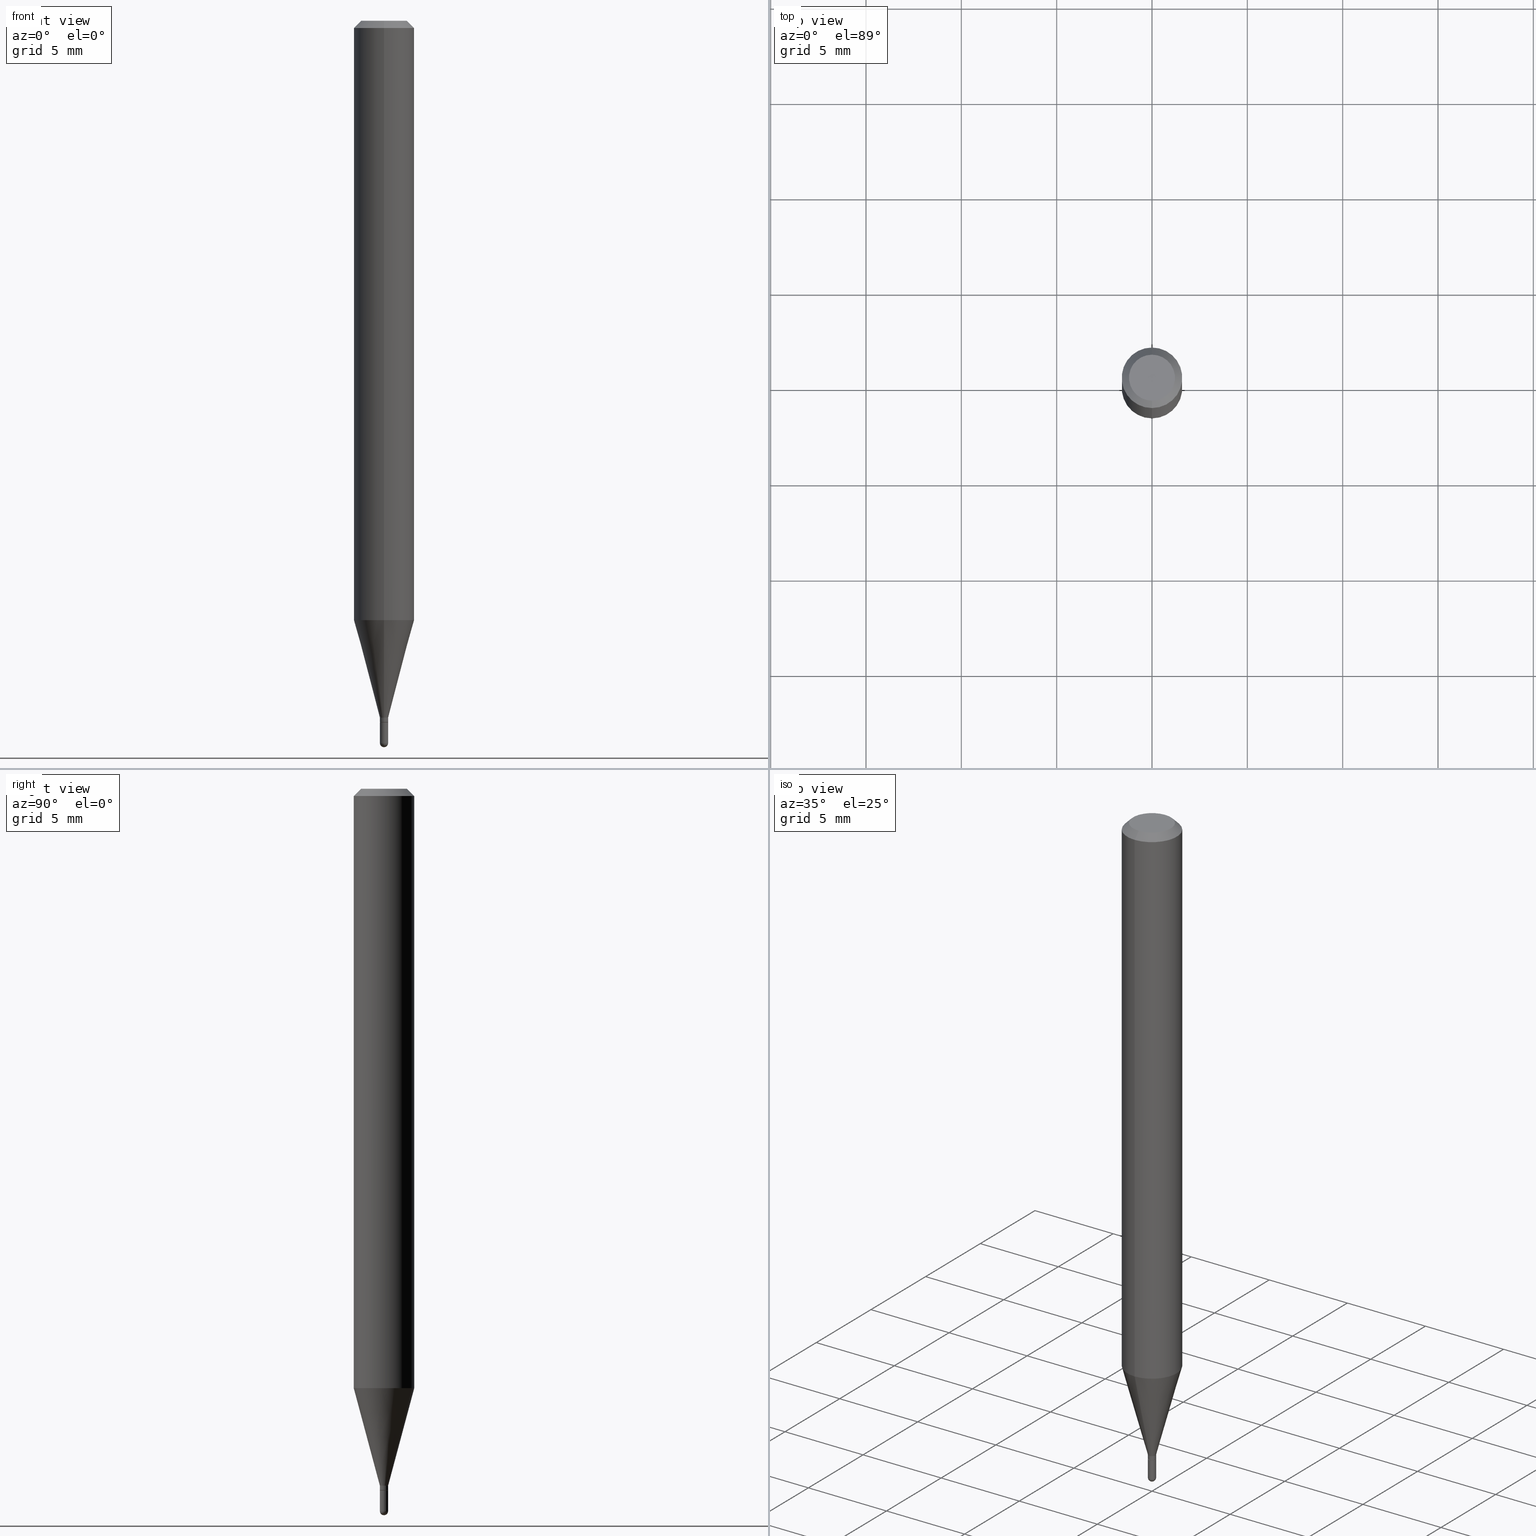
[diagram: canonical four-view strip — front | top / right | iso, engineering-drawing reading convention]
A machine part, canonical four-view strip (front | top / right | iso — engineering-drawing reading convention). The complete STEP part file that produces these views, byte-faithful:
ISO-10303-21;
HEADER;
FILE_DESCRIPTION (( 'STEP AP203' ),
    '1' );
FILE_NAME ('00894.STEP',
    '2024-03-07T18:43:12',
    ( '' ),
    ( '' ),
    'SwSTEP 2.0',
    'SolidWorks 2023',
    '' );
FILE_SCHEMA (( 'CONFIG_CONTROL_DESIGN' ));
ENDSEC;

DATA;
#1 = DATE_AND_TIME ( #276, #384 ) ;
#2 = ORIENTED_EDGE ( 'NONE', *, *, #46, .F. ) ;
#3 = APPLICATION_PROTOCOL_DEFINITION ( 'international standard', 'config_control_design', 1994, #210 ) ;
#4 = DIRECTION ( 'NONE',  ( 2.445453638113980177E-29, -3.491503060384354605E-15, -1.000000000000000000 ) ) ;
#5 = ORIENTED_EDGE ( 'NONE', *, *, #200, .T. ) ;
#6 = VERTEX_POINT ( 'NONE', #450 ) ;
#7 = COORDINATED_UNIVERSAL_TIME_OFFSET ( 5, 0, .BEHIND. ) ;
#8 = DIRECTION ( 'NONE',  ( -4.851104656540964275E-15, -0.7071067811865500152, -0.7071067811865450192 ) ) ;
#9 = DIRECTION ( 'NONE',  ( -4.937700262164674260E-15, -0.7071067811865632269, 0.7071067811865319186 ) ) ;
#10 = CC_DESIGN_PERSON_AND_ORGANIZATION_ASSIGNMENT ( #436, #83, ( #163 ) ) ;
#11 = DIRECTION ( 'NONE',  ( -2.445453638113979897E-29, 3.491503060384354605E-15, 1.000000000000000000 ) ) ;
#12 = DIRECTION ( 'NONE',  ( -2.445453638113980177E-29, 3.491503060384354605E-15, 1.000000000000000000 ) ) ;
#13 = AXIS2_PLACEMENT_3D ( 'NONE', #425, #67, #225 ) ;
#14 = AXIS2_PLACEMENT_3D ( 'NONE', #191, #432, #460 ) ;
#15 = AXIS2_PLACEMENT_3D ( 'NONE', #279, #468, #318 ) ;
#16 = VECTOR ( 'NONE', #303, 39.37007874015748143 ) ;
#17 = LINE ( 'NONE', #493, #503 ) ;
#18 = PLANE ( 'NONE',  #79 ) ;
#19 = DIRECTION ( 'NONE',  ( 6.982962677686265922E-15, 1.000000000000000000, 0.000000000000000000 ) ) ;
#20 = DIRECTION ( 'NONE',  ( -2.445468806185136597E-29, 3.491481338843145583E-15, 1.000000000000000000 ) ) ;
#21 = ORIENTED_EDGE ( 'NONE', *, *, #125, .T. ) ;
#22 = LINE ( 'NONE', #348, #328 ) ;
#23 = LINE ( 'NONE', #506, #418 ) ;
#24 = CONICAL_SURFACE ( 'NONE', #136, 0.008499999999999924283, 0.2617993877991505181 ) ;
#25 = LOCAL_TIME ( 13, 43, 12.00000000000000000, #36 ) ;
#26 =( CONVERSION_BASED_UNIT ( 'INCH', #157 ) LENGTH_UNIT ( ) NAMED_UNIT ( #231 ) );
#27 = CARTESIAN_POINT ( 'NONE',  ( 3.026173695096260823E-29, -4.320627695821710436E-15, -1.237469256391281247 ) ) ;
#28 = EDGE_CURVE ( 'NONE', #400, #353, #458, .T. ) ;
#29 = DIRECTION ( 'NONE',  ( -2.445468806185136877E-29, 3.491481338843145188E-15, 1.000000000000000000 ) ) ;
#30 = CARTESIAN_POINT ( 'NONE',  ( 5.935518276036960296E-17, 0.008499999999994775624, -1.491500000000000270 ) ) ;
#31 = PLANE ( 'NONE',  #249 ) ;
#32 = VERTEX_POINT ( 'NONE', #444 ) ;
#33 = CARTESIAN_POINT ( 'NONE',  ( 5.861977570024342171E-17, 0.007999999999994941713, -1.449000000000000066 ) ) ;
#34 = CARTESIAN_POINT ( 'NONE',  ( 4.440892098500927901E-16, 0.06249999999999569095, -1.237469256391281691 ) ) ;
#35 = AXIS2_PLACEMENT_3D ( 'NONE', #440, #309, #40 ) ;
#36 = COORDINATED_UNIVERSAL_TIME_OFFSET ( 5, 0, .BEHIND. ) ;
#37 = PERSON_AND_ORGANIZATION ( #134, #228 ) ;
#38 = EDGE_CURVE ( 'NONE', #193, #32, #100, .T. ) ;
#39 = CARTESIAN_POINT ( 'NONE',  ( 3.668180457170972613E-31, -5.237254590576535705E-17, -0.01500000000000000812 ) ) ;
#40 = DIRECTION ( 'NONE',  ( 6.982962677686265922E-15, 1.000000000000000000, -3.483106191921935554E-15 ) ) ;
#41 = DATE_TIME_ROLE ( 'creation_date' ) ;
#42 = CARTESIAN_POINT ( 'NONE',  ( -5.586370142145469855E-17, -0.008000000000005060355, -1.449000000000000066 ) ) ;
#43 = DIRECTION ( 'NONE',  ( -2.445453638113980177E-29, 3.491503060384354605E-15, 1.000000000000000000 ) ) ;
#44 = AXIS2_PLACEMENT_3D ( 'NONE', #474, #166, #119 ) ;
#45 = AXIS2_PLACEMENT_3D ( 'NONE', #330, #282, #248 ) ;
#46 = EDGE_CURVE ( 'NONE', #6, #307, #259, .T. ) ;
#47 = CC_DESIGN_DATE_AND_TIME_ASSIGNMENT ( #118, #399, ( #213 ) ) ;
#48 = CALENDAR_DATE ( 2024, 7, 3 ) ;
#49 = EDGE_LOOP ( 'NONE', ( #287, #312 ) ) ;
#50 = FACE_OUTER_BOUND ( 'NONE', #448, .T. ) ;
#51 = AXIS2_PLACEMENT_3D ( 'NONE', #65, #220, #254 ) ;
#52 = CIRCLE ( 'NONE', #206, 0.008499999999999964181 ) ;
#53 = LOCAL_TIME ( 13, 43, 12.00000000000000000, #7 ) ;
#54 = CARTESIAN_POINT ( 'NONE',  ( 3.316907271900976096E-16, 0.04749999999999999362, -1.702760392775686782E-16 ) ) ;
#55 = EDGE_LOOP ( 'NONE', ( #326, #81, #82, #500 ) ) ;
#56 = LINE ( 'NONE', #383, #155 ) ;
#57 = FACE_OUTER_BOUND ( 'NONE', #158, .T. ) ;
#58 = CARTESIAN_POINT ( 'NONE',  ( 0.008500000000000002345, -5.192705621194468652E-15, -1.491500000000000270 ) ) ;
#59 = FACE_OUTER_BOUND ( 'NONE', #140, .T. ) ;
#60 = FACE_OUTER_BOUND ( 'NONE', #364, .T. ) ;
#61 = EDGE_LOOP ( 'NONE', ( #281, #351 ) ) ;
#62 = CIRCLE ( 'NONE', #13, 0.008500000000000002345 ) ;
#63 = VECTOR ( 'NONE', #195, 39.37007874015748854 ) ;
#64 = DIRECTION ( 'NONE',  ( -1.000000000000000000, 6.982962677686265922E-15, -4.876176775795935793E-29 ) ) ;
#65 = CARTESIAN_POINT ( 'NONE',  ( 3.543462321627157174E-29, -5.059187934496930436E-15, -1.449000000000000066 ) ) ;
#66 = FACE_OUTER_BOUND ( 'NONE', #199, .T. ) ;
#67 = DIRECTION ( 'NONE',  ( -2.445468806185136597E-29, 3.491481338843145583E-15, 1.000000000000000000 ) ) ;
#68 = DIRECTION ( 'NONE',  ( -2.445453638113980457E-29, 3.491503060384354605E-15, 1.000000000000000000 ) ) ;
#69 = ADVANCED_FACE ( 'NONE', ( #346 ), #268, .T. ) ;
#70 = DIRECTION ( 'NONE',  ( 4.937700262164548042E-15, 0.7071067811865451302, -0.7071067811865499042 ) ) ;
#71 = AXIS2_PLACEMENT_3D ( 'NONE', #406, #223, #344 ) ;
#72 = APPROVAL_PERSON_ORGANIZATION ( #372, #117, #280 ) ;
#73 = CARTESIAN_POINT ( 'NONE',  ( -6.039613253957192439E-17, -0.008500000000005190903, -1.491500000000000270 ) ) ;
#74 = ORIENTED_EDGE ( 'NONE', *, *, #240, .T. ) ;
#75 = EDGE_LOOP ( 'NONE', ( #154, #78, #401, #322 ) ) ;
#76 = ADVANCED_FACE ( 'NONE', ( #306 ), #387, .T. ) ;
#77 = DIRECTION ( 'NONE',  ( -6.982962677686265922E-15, -1.000000000000000000, 4.370956789862821150E-15 ) ) ;
#78 = ORIENTED_EDGE ( 'NONE', *, *, #242, .T. ) ;
#79 = AXIS2_PLACEMENT_3D ( 'NONE', #93, #291, #64 ) ;
#80 = DATE_AND_TIME ( #48, #357 ) ;
#81 = ORIENTED_EDGE ( 'NONE', *, *, #88, .T. ) ;
#82 = ORIENTED_EDGE ( 'NONE', *, *, #87, .T. ) ;
#83 = PERSON_AND_ORGANIZATION_ROLE ( 'creator' ) ;
#84 = EDGE_LOOP ( 'NONE', ( #2, #5, #443, #323 ) ) ;
#85 = ORIENTED_EDGE ( 'NONE', *, *, #476, .T. ) ;
#86 = APPROVAL_ROLE ( '' ) ;
#87 = EDGE_CURVE ( 'NONE', #108, #252, #194, .T. ) ;
#88 = EDGE_CURVE ( 'NONE', #419, #108, #308, .T. ) ;
#89 = DIRECTION ( 'NONE',  ( 0.000000000000000000, 0.000000000000000000, 1.000000000000000000 ) ) ;
#90 = CIRCLE ( 'NONE', #44, 0.06250000000000000000 ) ;
#91 = CC_DESIGN_APPROVAL ( #117, ( #417 ) ) ;
#92 = EDGE_CURVE ( 'NONE', #353, #400, #90, .T. ) ;
#93 = CARTESIAN_POINT ( 'NONE',  ( 5.935518276036870316E-17, 0.008499999999994942157, -1.449000000000000066 ) ) ;
#94 = AXIS2_PLACEMENT_3D ( 'NONE', #250, #488, #412 ) ;
#95 = PRODUCT_RELATED_PRODUCT_CATEGORY ( 'detail', '', ( #217 ) ) ;
#96 = CC_DESIGN_APPROVAL ( #232, ( #163 ) ) ;
#97 = CARTESIAN_POINT ( 'NONE',  ( -0.008500000000000000611, -5.072954305894525412E-15, -1.449000000000000066 ) ) ;
#98 = DIRECTION ( 'NONE',  ( 1.839019923739601893E-15, 0.2588190451025252359, 0.9659258262890670910 ) ) ;
#99 = DIRECTION ( 'NONE',  ( -6.982962677686265922E-15, -1.000000000000000000, 3.483106191921935554E-15 ) ) ;
#100 = LINE ( 'NONE', #255, #266 ) ;
#101 = DIRECTION ( 'NONE',  ( -6.982962677686265922E-15, -1.000000000000000000, 3.491503060384354605E-15 ) ) ;
#102 = ADVANCED_FACE ( 'NONE', ( #110 ), #31, .F. ) ;
#103 = DIRECTION ( 'NONE',  ( -2.445468806185136597E-29, 3.491481338843145583E-15, 1.000000000000000000 ) ) ;
#104 = ORIENTED_EDGE ( 'NONE', *, *, #92, .T. ) ;
#105 = CARTESIAN_POINT ( 'NONE',  ( 3.519007785246017748E-29, -5.024272903893087103E-15, -1.439000000000000057 ) ) ;
#106 = ADVANCED_FACE ( 'NONE', ( #59 ), #172, .T. ) ;
#107 = CARTESIAN_POINT ( 'NONE',  ( -4.364351673553912750E-16, -0.06250000000000005551, -0.01499999999999979128 ) ) ;
#108 = VERTEX_POINT ( 'NONE', #42 ) ;
#109 = ADVANCED_FACE ( 'NONE', ( #60 ), #454, .T. ) ;
#110 = FACE_OUTER_BOUND ( 'NONE', #214, .T. ) ;
#111 = DIRECTION ( 'NONE',  ( -2.445453638113980177E-29, 3.491503060384354605E-15, 1.000000000000000000 ) ) ;
#112 = AXIS2_PLACEMENT_3D ( 'NONE', #456, #494, #215 ) ;
#113 = VECTOR ( 'NONE', #68, 39.37007874015748143 ) ;
#114 = FACE_OUTER_BOUND ( 'NONE', #362, .T. ) ;
#115 = ADVANCED_FACE ( 'NONE', ( #221 ), #24, .T. ) ;
#116 = ORIENTED_EDGE ( 'NONE', *, *, #208, .T. ) ;
#117 = APPROVAL ( #127, 'UNSPECIFIED' ) ;
#118 = DATE_AND_TIME ( #365, #388 ) ;
#119 = DIRECTION ( 'NONE',  ( -6.982962677686265922E-15, -1.000000000000000000, 3.483106191921935554E-15 ) ) ;
#120 = ORIENTED_EDGE ( 'NONE', *, *, #316, .T. ) ;
#121 = VERTEX_POINT ( 'NONE', #286 ) ;
#122 = AXIS2_PLACEMENT_3D ( 'NONE', #461, #299, #19 ) ;
#123 = APPROVAL_DATE_TIME ( #80, #117 ) ;
#124 = VERTEX_POINT ( 'NONE', #97 ) ;
#125 = EDGE_CURVE ( 'NONE', #285, #459, #227, .T. ) ;
#126 = ADVANCED_FACE ( 'NONE', ( #165 ), #205, .T. ) ;
#127 = APPROVAL_STATUS ( 'not_yet_approved' ) ;
#128 = AXIS2_PLACEMENT_3D ( 'NONE', #39, #4, #463 ) ;
#129 = ORIENTED_EDGE ( 'NONE', *, *, #138, .T. ) ;
#130 = ADVANCED_BREP_SHAPE_REPRESENTATION ( '00894', ( #475, #486, #367 ), #311 ) ;
#131 = EDGE_CURVE ( 'NONE', #341, #393, #478, .T. ) ;
#132 = PLANE ( 'NONE',  #339 ) ;
#133 = CC_DESIGN_DATE_AND_TIME_ASSIGNMENT ( #1, #41, ( #417 ) ) ;
#134 = PERSON ( 'UNSPECIFIED', 'UNSPECIFIED', 'UNSPECIFIED', ('UNSPECIFIED'), ('UNSPECIFIED'), ('UNSPECIFIED') ) ;
#135 = CARTESIAN_POINT ( 'NONE',  ( 3.542239594808100175E-29, -5.057442182966738625E-15, -1.448500000000000121 ) ) ;
#136 = AXIS2_PLACEMENT_3D ( 'NONE', #324, #466, #247 ) ;
#137 = AXIS2_PLACEMENT_3D ( 'NONE', #392, #389, #305 ) ;
#138 = EDGE_CURVE ( 'NONE', #307, #6, #511, .T. ) ;
#139 = CC_DESIGN_PERSON_AND_ORGANIZATION_ASSIGNMENT ( #164, #402, ( #213 ) ) ;
#140 = EDGE_LOOP ( 'NONE', ( #189, #378, #396, #481 ) ) ;
#141 = VERTEX_POINT ( 'NONE', #449 ) ;
#142 = ORIENTED_EDGE ( 'NONE', *, *, #316, .F. ) ;
#143 = CARTESIAN_POINT ( 'NONE',  ( 0.000000000000000000, 0.000000000000000000, 0.000000000000000000 ) ) ;
#144 = ORIENTED_EDGE ( 'NONE', *, *, #131, .F. ) ;
#145 = CONICAL_SURFACE ( 'NONE', #479, 0.008499999999999924283, 0.2617993877991505181 ) ;
#146 = APPLICATION_CONTEXT ( 'configuration controlled 3d designs of mechanical parts and assemblies' ) ;
#147 = ORIENTED_EDGE ( 'NONE', *, *, #376, .F. ) ;
#148 = CARTESIAN_POINT ( 'NONE',  ( 0.008500000000000002345, -5.935518276033327838E-17, 4.144750259426545879E-31 ) ) ;
#149 = CARTESIAN_POINT ( 'NONE',  ( 3.646689833079329078E-29, -5.208585366663827303E-15, -1.491500000000000270 ) ) ;
#150 = ORIENTED_EDGE ( 'NONE', *, *, #391, .F. ) ;
#151 = CARTESIAN_POINT ( 'NONE',  ( -4.364351673553615448E-16, -0.06250000000000432987, -1.237469256391281025 ) ) ;
#152 = ADVANCED_FACE ( 'NONE', ( #253 ), #334, .T. ) ;
#153 = CARTESIAN_POINT ( 'NONE',  ( 3.519007785246017748E-29, -5.024272903893087103E-15, -1.439000000000000057 ) ) ;
#154 = ORIENTED_EDGE ( 'NONE', *, *, #407, .T. ) ;
#155 = VECTOR ( 'NONE', #8, 39.37007874015748143 ) ;
#156 = APPROVAL_PERSON_ORGANIZATION ( #239, #232, #209 ) ;
#157 = LENGTH_MEASURE_WITH_UNIT ( LENGTH_MEASURE( 0.02539999999999999897 ), #263 );
#158 = EDGE_LOOP ( 'NONE', ( #315, #314, #340, #150 ) ) ;
#159 = DATE_AND_TIME ( #235, #25 ) ;
#160 = COORDINATED_UNIVERSAL_TIME_OFFSET ( 5, 0, .BEHIND. ) ;
#161 = CLOSED_SHELL ( 'NONE', ( #152, #69, #354, #368, #109 ) ) ;
#162 = EDGE_CURVE ( 'NONE', #252, #193, #176, .T. ) ;
#163 = PRODUCT_DEFINITION_FORMATION_WITH_SPECIFIED_SOURCE ( 'ANY', '', #217, .NOT_KNOWN. ) ;
#164 = PERSON_AND_ORGANIZATION ( #134, #228 ) ;
#165 = FACE_OUTER_BOUND ( 'NONE', #84, .T. ) ;
#166 = DIRECTION ( 'NONE',  ( -2.445453638113980177E-29, 3.491503060384354605E-15, 1.000000000000000000 ) ) ;
#167 = CARTESIAN_POINT ( 'NONE',  ( 0.000000000000000000, 0.000000000000000000, 0.000000000000000000 ) ) ;
#168 = ADVANCED_FACE ( 'NONE', ( #50 ), #333, .T. ) ;
#169 = AXIS2_PLACEMENT_3D ( 'NONE', #395, #236, #462 ) ;
#170 = CC_DESIGN_SECURITY_CLASSIFICATION ( #213, ( #163 ) ) ;
#171 = PRODUCT_DEFINITION_SHAPE ( 'NONE', 'NONE',  #417 ) ;
#172 = CYLINDRICAL_SURFACE ( 'NONE', #374, 0.008499999999999924283 ) ;
#173 = DIRECTION ( 'NONE',  ( -2.445468806185136597E-29, 3.491481338843145583E-15, 1.000000000000000000 ) ) ;
#174 = DIRECTION ( 'NONE',  ( -2.445468806185136597E-29, 3.491481338843145583E-15, 1.000000000000000000 ) ) ;
#175 = EDGE_CURVE ( 'NONE', #124, #141, #435, .T. ) ;
#176 = CIRCLE ( 'NONE', #427, 0.008499999999999924283 ) ;
#177 = AXIS2_PLACEMENT_3D ( 'NONE', #143, #190, #352 ) ;
#178 = CYLINDRICAL_SURFACE ( 'NONE', #45, 0.06250000000000000000 ) ;
#179 = VERTEX_POINT ( 'NONE', #151 ) ;
#180 = DIRECTION ( 'NONE',  ( -7.105427357601000281E-15, -1.000000000000000000, 0.000000000000000000 ) ) ;
#181 = ORIENTED_EDGE ( 'NONE', *, *, #200, .F. ) ;
#182 = CARTESIAN_POINT ( 'NONE',  ( 3.519007785246017748E-29, -5.024272903893087103E-15, -1.439000000000000057 ) ) ;
#183 = EDGE_CURVE ( 'NONE', #141, #124, #288, .T. ) ;
#184 = DIRECTION ( 'NONE',  ( 6.982962677686265922E-15, 1.000000000000000000, 0.000000000000000000 ) ) ;
#185 = CIRCLE ( 'NONE', #245, 0.008499999999999924283 ) ;
#186 = APPROVAL ( #370, 'UNSPECIFIED' ) ;
#187 = CARTESIAN_POINT ( 'NONE',  ( 3.542239594808100175E-29, -5.057442182966738625E-15, -1.448500000000000121 ) ) ;
#188 = DIRECTION ( 'NONE',  ( -6.982962677686266711E-15, -1.000000000000000000, 3.491503060384354605E-15 ) ) ;
#189 = ORIENTED_EDGE ( 'NONE', *, *, #162, .T. ) ;
#190 = DIRECTION ( 'NONE',  ( -2.445453638113980177E-29, 3.491503060384354605E-15, 1.000000000000000000 ) ) ;
#191 = CARTESIAN_POINT ( 'NONE',  ( 3.647416724425131194E-29, -5.207544416884551827E-15, -1.491500000000000270 ) ) ;
#192 = CARTESIAN_POINT ( 'NONE',  ( -0.008500000000000002345, 6.039613253960853246E-17, -4.181094826716670944E-31 ) ) ;
#193 = VERTEX_POINT ( 'NONE', #415 ) ;
#194 = LINE ( 'NONE', #485, #366 ) ;
#195 = DIRECTION ( 'NONE',  ( -1.807323732225331717E-15, -0.2588190451025184080, 0.9659258262890689783 ) ) ;
#196 = AXIS2_PLACEMENT_3D ( 'NONE', #27, #111, #293 ) ;
#197 = APPROVAL_DATE_TIME ( #159, #232 ) ;
#198 = CALENDAR_DATE ( 2024, 7, 3 ) ;
#199 = EDGE_LOOP ( 'NONE', ( #439, #85, #416, #142 ) ) ;
#200 = EDGE_CURVE ( 'NONE', #6, #400, #56, .T. ) ;
#201 = ADVANCED_FACE ( 'NONE', ( #277 ), #355, .T. ) ;
#202 = PERSON_AND_ORGANIZATION ( #134, #228 ) ;
#203 = DIRECTION ( 'NONE',  ( -6.982962677686266711E-15, -1.000000000000000000, 3.491503060384355000E-15 ) ) ;
#204 = ORIENTED_EDGE ( 'NONE', *, *, #87, .F. ) ;
#205 = CONICAL_SURFACE ( 'NONE', #35, 0.06250000000000000000, 0.7853981633974483900 ) ;
#206 = AXIS2_PLACEMENT_3D ( 'NONE', #149, #467, #184 ) ;
#207 = APPROVAL_STATUS ( 'not_yet_approved' ) ;
#208 = EDGE_CURVE ( 'NONE', #393, #285, #62, .T. ) ;
#209 = APPROVAL_ROLE ( '' ) ;
#210 = APPLICATION_CONTEXT ( 'configuration controlled 3d designs of mechanical parts and assemblies' ) ;
#211 = EDGE_CURVE ( 'NONE', #307, #353, #23, .T. ) ;
#212 = CIRCLE ( 'NONE', #196, 0.06250000000000000000 ) ;
#213 = SECURITY_CLASSIFICATION ( '', '', #246 ) ;
#214 = EDGE_LOOP ( 'NONE', ( #129, #301 ) ) ;
#215 = DIRECTION ( 'NONE',  ( -6.982962677686266711E-15, -1.000000000000000000, 3.491503060384354605E-15 ) ) ;
#216 = FACE_OUTER_BOUND ( 'NONE', #61, .T. ) ;
#217 = PRODUCT ( '00894', '00894', '', ( #484 ) ) ;
#218 = ORIENTED_EDGE ( 'NONE', *, *, #38, .F. ) ;
#219 = AXIS2_PLACEMENT_3D ( 'NONE', #262, #359, #188 ) ;
#220 = DIRECTION ( 'NONE',  ( -2.445453638113980177E-29, 3.491503060384354605E-15, 1.000000000000000000 ) ) ;
#221 = FACE_OUTER_BOUND ( 'NONE', #75, .T. ) ;
#222 = EDGE_CURVE ( 'NONE', #179, #297, #212, .T. ) ;
#223 = DIRECTION ( 'NONE',  ( -2.445468806185136597E-29, 3.491481338843145583E-15, 1.000000000000000000 ) ) ;
#224 = DIRECTION ( 'NONE',  ( -6.982962677686266711E-15, -1.000000000000000000, 0.000000000000000000 ) ) ;
#225 = DIRECTION ( 'NONE',  ( 1.000000000000000000, -6.982962677686273021E-15, 0.000000000000000000 ) ) ;
#226 = CARTESIAN_POINT ( 'NONE',  ( 4.440892098500625669E-16, 0.06250000000000000000, -2.182189412740221628E-16 ) ) ;
#227 = CIRCLE ( 'NONE', #71, 0.008500000000000002345 ) ;
#228 = ORGANIZATION ( 'UNSPECIFIED', 'UNSPECIFIED', '' ) ;
#229 = LINE ( 'NONE', #148, #375 ) ;
#230 = DIRECTION ( 'NONE',  ( -2.445453638113980457E-29, 3.491503060384354605E-15, 1.000000000000000000 ) ) ;
#231 = DIMENSIONAL_EXPONENTS ( 1.000000000000000000, 0.000000000000000000, 0.000000000000000000, 0.000000000000000000, 0.000000000000000000, 0.000000000000000000, 0.000000000000000000 ) ;
#232 = APPROVAL ( #207, 'UNSPECIFIED' ) ;
#233 = CARTESIAN_POINT ( 'NONE',  ( -4.364351673553916201E-16, -0.06250000000000000000, 2.182189412740221628E-16 ) ) ;
#234 = CARTESIAN_POINT ( 'NONE',  ( 3.543462321627157174E-29, -5.059187934496930436E-15, -1.449000000000000066 ) ) ;
#235 = CALENDAR_DATE ( 2024, 7, 3 ) ;
#236 = DIRECTION ( 'NONE',  ( -1.000000000000000000, 6.982962677686265922E-15, -4.883557194083112340E-29 ) ) ;
#237 = AXIS2_PLACEMENT_3D ( 'NONE', #496, #20, #452 ) ;
#238 = DIRECTION ( 'NONE',  ( -2.445453638113980177E-29, 3.491503060384354605E-15, 1.000000000000000000 ) ) ;
#239 = PERSON_AND_ORGANIZATION ( #134, #228 ) ;
#240 = EDGE_CURVE ( 'NONE', #193, #252, #327, .T. ) ;
#241 = PERSON_AND_ORGANIZATION_ROLE ( 'design_supplier' ) ;
#242 = EDGE_CURVE ( 'NONE', #32, #297, #17, .T. ) ;
#243 = ORIENTED_EDGE ( 'NONE', *, *, #451, .T. ) ;
#244 = AXIS2_PLACEMENT_3D ( 'NONE', #377, #173, #336 ) ;
#245 = AXIS2_PLACEMENT_3D ( 'NONE', #105, #509, #224 ) ;
#246 = SECURITY_CLASSIFICATION_LEVEL ( 'unclassified' ) ;
#247 = DIRECTION ( 'NONE',  ( -6.982962677686266711E-15, -1.000000000000000000, 0.000000000000000000 ) ) ;
#248 = DIRECTION ( 'NONE',  ( -6.982962677686265922E-15, -1.000000000000000000, 3.491503060384354605E-15 ) ) ;
#249 = AXIS2_PLACEMENT_3D ( 'NONE', #54, #335, #290 ) ;
#250 = CARTESIAN_POINT ( 'NONE',  ( 0.000000000000000000, 0.000000000000000000, 0.000000000000000000 ) ) ;
#251 = CARTESIAN_POINT ( 'NONE',  ( 0.000000000000000000, 0.000000000000000000, 0.000000000000000000 ) ) ;
#252 = VERTEX_POINT ( 'NONE', #257 ) ;
#253 = FACE_OUTER_BOUND ( 'NONE', #437, .T. ) ;
#254 = DIRECTION ( 'NONE',  ( -6.982962677686266711E-15, -1.000000000000000000, 0.000000000000000000 ) ) ;
#255 = CARTESIAN_POINT ( 'NONE',  ( 6.039613253960797780E-17, 0.008499999999999924283, -2.967777601326675175E-17 ) ) ;
#256 = EDGE_CURVE ( 'NONE', #108, #419, #501, .T. ) ;
#257 = CARTESIAN_POINT ( 'NONE',  ( -5.935518276029752079E-17, -0.008500000000005010492, -1.448500000000000121 ) ) ;
#258 = DIRECTION ( 'NONE',  ( 1.000000000000000000, -6.982962677686265922E-15, 4.876176775795935232E-29 ) ) ;
#259 = CIRCLE ( 'NONE', #219, 0.04749999999999999362 ) ;
#260 = ORIENTED_EDGE ( 'NONE', *, *, #391, .T. ) ;
#261 = DIRECTION ( 'NONE',  ( 5.024295867788190974E-15, 0.7071067811865681119, 0.7071067811865270336 ) ) ;
#262 = CARTESIAN_POINT ( 'NONE',  ( 2.166497762715211531E-46, -3.093223053155036777E-32, -8.859287818623667781E-18 ) ) ;
#263 =( LENGTH_UNIT ( ) NAMED_UNIT ( * ) SI_UNIT ( $, .METRE. ) );
#264 = ORIENTED_EDGE ( 'NONE', *, *, #423, .F. ) ;
#265 = CARTESIAN_POINT ( 'NONE',  ( -5.935518276033273604E-17, -0.008499999999999924283, 2.967777601326675175E-17 ) ) ;
#266 = VECTOR ( 'NONE', #349, 39.37007874015748143 ) ;
#267 = ADVANCED_FACE ( 'NONE', ( #57 ), #178, .T. ) ;
#268 = SPHERICAL_SURFACE ( 'NONE', #169, 0.008499999999999964181 ) ;
#269 = EDGE_LOOP ( 'NONE', ( #181, #403, #471, #104 ) ) ;
#270 = ORIENTED_EDGE ( 'NONE', *, *, #162, .F. ) ;
#271 = EDGE_CURVE ( 'NONE', #459, #422, #428, .T. ) ;
#272 = DIRECTION ( 'NONE',  ( 1.000000000000000000, 0.000000000000000000, 0.000000000000000000 ) ) ;
#273 = AXIS2_PLACEMENT_3D ( 'NONE', #342, #12, #371 ) ;
#274 = VECTOR ( 'NONE', #313, 39.37007874015748143 ) ;
#275 = FACE_OUTER_BOUND ( 'NONE', #55, .T. ) ;
#276 = CALENDAR_DATE ( 2024, 7, 3 ) ;
#277 = FACE_OUTER_BOUND ( 'NONE', #269, .T. ) ;
#278 = AXIS2_PLACEMENT_3D ( 'NONE', #379, #174, #258 ) ;
#279 = CARTESIAN_POINT ( 'NONE',  ( 3.543462321627157174E-29, -5.059187934496930436E-15, -1.449000000000000066 ) ) ;
#280 = APPROVAL_ROLE ( '' ) ;
#281 = ORIENTED_EDGE ( 'NONE', *, *, #256, .F. ) ;
#282 = DIRECTION ( 'NONE',  ( -2.445453638113980177E-29, 3.491503060384354605E-15, 1.000000000000000000 ) ) ;
#283 = EDGE_CURVE ( 'NONE', #285, #141, #229, .T. ) ;
#284 = ORIENTED_EDGE ( 'NONE', *, *, #131, .T. ) ;
#285 = VERTEX_POINT ( 'NONE', #58 ) ;
#286 = CARTESIAN_POINT ( 'NONE',  ( -5.935518276029754545E-17, -0.008500000000004949777, -1.439000000000000057 ) ) ;
#287 = ORIENTED_EDGE ( 'NONE', *, *, #183, .T. ) ;
#288 = CIRCLE ( 'NONE', #237, 0.008500000000000000611 ) ;
#289 = DIRECTION ( 'NONE',  ( -2.445453638113980177E-29, 3.491503060384354605E-15, 1.000000000000000000 ) ) ;
#290 = DIRECTION ( 'NONE',  ( 6.982962677686265922E-15, 1.000000000000000000, -3.491503060384354605E-15 ) ) ;
#291 = DIRECTION ( 'NONE',  ( 2.438088387897960049E-29, -3.491481338843145188E-15, -1.000000000000000000 ) ) ;
#292 = CC_DESIGN_PERSON_AND_ORGANIZATION_ASSIGNMENT ( #202, #442, ( #417 ) ) ;
#293 = DIRECTION ( 'NONE',  ( -6.982962677686265922E-15, -1.000000000000000000, 4.370956789862821150E-15 ) ) ;
#294 = ORIENTED_EDGE ( 'NONE', *, *, #271, .F. ) ;
#295 = EDGE_LOOP ( 'NONE', ( #413, #431, #270, #204 ) ) ;
#296 = CC_DESIGN_PERSON_AND_ORGANIZATION_ASSIGNMENT ( #317, #241, ( #163 ) ) ;
#297 = VERTEX_POINT ( 'NONE', #34 ) ;
#298 = AXIS2_PLACEMENT_3D ( 'NONE', #187, #289, #497 ) ;
#299 = DIRECTION ( 'NONE',  ( -1.000000000000000000, 6.982962677686265922E-15, -4.883557194083112340E-29 ) ) ;
#300 = AXIS2_PLACEMENT_3D ( 'NONE', #234, #238, #398 ) ;
#301 = ORIENTED_EDGE ( 'NONE', *, *, #46, .T. ) ;
#302 = FACE_OUTER_BOUND ( 'NONE', #49, .T. ) ;
#303 = DIRECTION ( 'NONE',  ( -2.445453638113980457E-29, 3.491503060384354605E-15, 1.000000000000000000 ) ) ;
#304 = EDGE_CURVE ( 'NONE', #121, #179, #453, .T. ) ;
#305 = DIRECTION ( 'NONE',  ( 1.000000000000000000, -6.982962677686273021E-15, 0.000000000000000000 ) ) ;
#306 = FACE_OUTER_BOUND ( 'NONE', #295, .T. ) ;
#307 = VERTEX_POINT ( 'NONE', #356 ) ;
#308 = CIRCLE ( 'NONE', #15, 0.008000000000000000167 ) ;
#309 = DIRECTION ( 'NONE',  ( 2.445453638113980177E-29, -3.491503060384354605E-15, -1.000000000000000000 ) ) ;
#310 = EDGE_LOOP ( 'NONE', ( #144, #429, #445, #414 ) ) ;
#311 =( GEOMETRIC_REPRESENTATION_CONTEXT ( 3 ) GLOBAL_UNCERTAINTY_ASSIGNED_CONTEXT ( ( #411 ) ) GLOBAL_UNIT_ASSIGNED_CONTEXT ( ( #26, #350, #470 ) ) REPRESENTATION_CONTEXT ( 'NONE', 'WORKASPACE' ) );
#312 = ORIENTED_EDGE ( 'NONE', *, *, #175, .T. ) ;
#313 = DIRECTION ( 'NONE',  ( -2.445468806185136877E-29, 3.491481338843145188E-15, 1.000000000000000000 ) ) ;
#314 = ORIENTED_EDGE ( 'NONE', *, *, #423, .T. ) ;
#315 = ORIENTED_EDGE ( 'NONE', *, *, #222, .T. ) ;
#316 = EDGE_CURVE ( 'NONE', #297, #179, #447, .T. ) ;
#317 = PERSON_AND_ORGANIZATION ( #134, #228 ) ;
#318 = DIRECTION ( 'NONE',  ( -6.982962677686266711E-15, -1.000000000000000000, 0.000000000000000000 ) ) ;
#319 = ORIENTED_EDGE ( 'NONE', *, *, #175, .F. ) ;
#320 = APPLICATION_PROTOCOL_DEFINITION ( 'international standard', 'config_control_design', 1994, #146 ) ;
#321 = DATE_AND_TIME ( #198, #53 ) ;
#322 = ORIENTED_EDGE ( 'NONE', *, *, #304, .F. ) ;
#323 = ORIENTED_EDGE ( 'NONE', *, *, #211, .F. ) ;
#324 = CARTESIAN_POINT ( 'NONE',  ( 3.519007785246017748E-29, -5.024272903893087103E-15, -1.439000000000000057 ) ) ;
#325 = PERSON_AND_ORGANIZATION_ROLE ( 'design_owner' ) ;
#326 = ORIENTED_EDGE ( 'NONE', *, *, #369, .F. ) ;
#327 = CIRCLE ( 'NONE', #298, 0.008499999999999924283 ) ;
#328 = VECTOR ( 'NONE', #261, 39.37007874015748143 ) ;
#329 = ORIENTED_EDGE ( 'NONE', *, *, #283, .T. ) ;
#330 = CARTESIAN_POINT ( 'NONE',  ( 0.000000000000000000, 0.000000000000000000, 0.000000000000000000 ) ) ;
#331 = ADVANCED_FACE ( 'NONE', ( #275 ), #469, .T. ) ;
#332 = DIRECTION ( 'NONE',  ( -2.445453638113980177E-29, 3.491503060384354605E-15, 1.000000000000000000 ) ) ;
#333 = CYLINDRICAL_SURFACE ( 'NONE', #94, 0.06250000000000000000 ) ;
#334 = CYLINDRICAL_SURFACE ( 'NONE', #278, 0.008500000000000002345 ) ;
#335 = DIRECTION ( 'NONE',  ( 2.445453638113979897E-29, -3.491503060384354605E-15, -1.000000000000000000 ) ) ;
#336 = DIRECTION ( 'NONE',  ( 1.000000000000000000, -6.982962677686274599E-15, 0.000000000000000000 ) ) ;
#337 = ORIENTED_EDGE ( 'NONE', *, *, #457, .T. ) ;
#338 = AXIS2_PLACEMENT_3D ( 'NONE', #251, #103, #491 ) ;
#339 = AXIS2_PLACEMENT_3D ( 'NONE', #408, #11, #101 ) ;
#340 = ORIENTED_EDGE ( 'NONE', *, *, #28, .F. ) ;
#341 = VERTEX_POINT ( 'NONE', #421 ) ;
#342 = CARTESIAN_POINT ( 'NONE',  ( 3.543462321627157174E-29, -5.059187934496930436E-15, -1.449000000000000066 ) ) ;
#343 = LINE ( 'NONE', #265, #16 ) ;
#344 = DIRECTION ( 'NONE',  ( 1.000000000000000000, -6.982962677686273021E-15, 0.000000000000000000 ) ) ;
#345 = CYLINDRICAL_SURFACE ( 'NONE', #177, 0.008499999999999924283 ) ;
#346 = FACE_OUTER_BOUND ( 'NONE', #473, .T. ) ;
#347 = AXIS2_PLACEMENT_3D ( 'NONE', #434, #381, #77 ) ;
#348 = CARTESIAN_POINT ( 'NONE',  ( 5.684341886084344084E-17, 0.007999999999994941713, -1.449000000000000066 ) ) ;
#349 = DIRECTION ( 'NONE',  ( -2.445453638113980457E-29, 3.491503060384354605E-15, 1.000000000000000000 ) ) ;
#350 =( NAMED_UNIT ( * ) PLANE_ANGLE_UNIT ( ) SI_UNIT ( $, .RADIAN. ) );
#351 = ORIENTED_EDGE ( 'NONE', *, *, #88, .F. ) ;
#352 = DIRECTION ( 'NONE',  ( -6.982962677686266711E-15, -1.000000000000000000, 3.491503060384355000E-15 ) ) ;
#353 = VERTEX_POINT ( 'NONE', #420 ) ;
#354 = ADVANCED_FACE ( 'NONE', ( #302 ), #18, .F. ) ;
#355 = CONICAL_SURFACE ( 'NONE', #128, 0.06250000000000000000, 0.7853981633974483900 ) ;
#356 = CARTESIAN_POINT ( 'NONE',  ( 3.840629472727447874E-16, 0.04749999999999999362, -1.747056831868805136E-16 ) ) ;
#357 = LOCAL_TIME ( 13, 43, 12.00000000000000000, #477 ) ;
#358 = PERSON_AND_ORGANIZATION ( #134, #228 ) ;
#359 = DIRECTION ( 'NONE',  ( -2.445453638113980177E-29, 3.491503060384354605E-15, 1.000000000000000000 ) ) ;
#360 = ADVANCED_FACE ( 'NONE', ( #216 ), #132, .F. ) ;
#361 = ORIENTED_EDGE ( 'NONE', *, *, #457, .F. ) ;
#362 = EDGE_LOOP ( 'NONE', ( #218, #74, #480, #430 ) ) ;
#363 = APPROVAL_DATE_TIME ( #321, #186 ) ;
#364 = EDGE_LOOP ( 'NONE', ( #390, #337, #116, #329, #319 ) ) ;
#365 = CALENDAR_DATE ( 2024, 7, 3 ) ;
#366 = VECTOR ( 'NONE', #9, 39.37007874015748143 ) ;
#367 = AXIS2_PLACEMENT_3D ( 'NONE', #167, #89, #272 ) ;
#368 = ADVANCED_FACE ( 'NONE', ( #373 ), #386, .T. ) ;
#369 = EDGE_CURVE ( 'NONE', #419, #193, #22, .T. ) ;
#370 = APPROVAL_STATUS ( 'not_yet_approved' ) ;
#371 = DIRECTION ( 'NONE',  ( -6.982962677686266711E-15, -1.000000000000000000, 0.000000000000000000 ) ) ;
#372 = PERSON_AND_ORGANIZATION ( #134, #228 ) ;
#373 = FACE_OUTER_BOUND ( 'NONE', #310, .T. ) ;
#374 = AXIS2_PLACEMENT_3D ( 'NONE', #487, #43, #203 ) ;
#375 = VECTOR ( 'NONE', #29, 39.37007874015748143 ) ;
#376 = EDGE_CURVE ( 'NONE', #341, #459, #52, .T. ) ;
#377 = CARTESIAN_POINT ( 'NONE',  ( 3.543484300162263247E-29, -5.059156459983718502E-15, -1.449000000000000066 ) ) ;
#378 = ORIENTED_EDGE ( 'NONE', *, *, #38, .T. ) ;
#379 = CARTESIAN_POINT ( 'NONE',  ( 0.000000000000000000, 0.000000000000000000, 0.000000000000000000 ) ) ;
#380 = ORIENTED_EDGE ( 'NONE', *, *, #183, .F. ) ;
#381 = DIRECTION ( 'NONE',  ( -2.445453638113980177E-29, 3.491503060384354605E-15, 1.000000000000000000 ) ) ;
#382 = DIRECTION ( 'NONE',  ( -6.982962677686266711E-15, -1.000000000000000000, 0.000000000000000000 ) ) ;
#383 = CARTESIAN_POINT ( 'NONE',  ( -4.287811248607203282E-16, -0.06250000000000005551, -0.01499999999999979128 ) ) ;
#384 = LOCAL_TIME ( 13, 43, 12.00000000000000000, #160 ) ;
#385 = CARTESIAN_POINT ( 'NONE',  ( 3.668180457170972613E-31, -5.237254590576535705E-17, -0.01500000000000000812 ) ) ;
#386 = SPHERICAL_SURFACE ( 'NONE', #122, 0.008499999999999964181 ) ;
#387 = CONICAL_SURFACE ( 'NONE', #273, 0.008000000000000000167, 0.7853981633974739252 ) ;
#388 = LOCAL_TIME ( 13, 43, 12.00000000000000000, #472 ) ;
#389 = DIRECTION ( 'NONE',  ( -2.445468806185136597E-29, 3.491481338843145583E-15, 1.000000000000000000 ) ) ;
#390 = ORIENTED_EDGE ( 'NONE', *, *, #451, .F. ) ;
#391 = EDGE_CURVE ( 'NONE', #179, #400, #426, .T. ) ;
#392 = CARTESIAN_POINT ( 'NONE',  ( 3.647416724425131194E-29, -5.207544416884551827E-15, -1.491500000000000270 ) ) ;
#393 = VERTEX_POINT ( 'NONE', #73 ) ;
#394 = CARTESIAN_POINT ( 'NONE',  ( -0.008500000000000002345, -5.072954305894525412E-15, -1.491500000000000270 ) ) ;
#395 = CARTESIAN_POINT ( 'NONE',  ( 3.646689833079329078E-29, -5.208585366663827303E-15, -1.491500000000000270 ) ) ;
#396 = ORIENTED_EDGE ( 'NONE', *, *, #407, .F. ) ;
#397 = CIRCLE ( 'NONE', #405, 0.008499999999999924283 ) ;
#398 = DIRECTION ( 'NONE',  ( -6.982962677686266711E-15, -1.000000000000000000, 0.000000000000000000 ) ) ;
#399 = DATE_TIME_ROLE ( 'classification_date' ) ;
#400 = VERTEX_POINT ( 'NONE', #107 ) ;
#401 = ORIENTED_EDGE ( 'NONE', *, *, #222, .F. ) ;
#402 = PERSON_AND_ORGANIZATION_ROLE ( 'classification_officer' ) ;
#403 = ORIENTED_EDGE ( 'NONE', *, *, #138, .F. ) ;
#404 = AXIS2_PLACEMENT_3D ( 'NONE', #483, #438, #180 ) ;
#405 = AXIS2_PLACEMENT_3D ( 'NONE', #182, #499, #424 ) ;
#406 = CARTESIAN_POINT ( 'NONE',  ( 3.647416724425131194E-29, -5.207544416884551827E-15, -1.491500000000000270 ) ) ;
#407 = EDGE_CURVE ( 'NONE', #121, #32, #397, .T. ) ;
#408 = CARTESIAN_POINT ( 'NONE',  ( 3.543462321627157174E-29, -5.059187934496930436E-15, -1.449000000000000066 ) ) ;
#409 = CLOSED_SHELL ( 'NONE', ( #106, #76, #126, #267, #115, #508, #168, #201, #102, #360, #331, #489 ) ) ;
#410 = VECTOR ( 'NONE', #230, 39.37007874015748143 ) ;
#411 = UNCERTAINTY_MEASURE_WITH_UNIT (LENGTH_MEASURE( 1.000000000000000082E-05 ), #26, 'distance_accuracy_value', 'NONE');
#412 = DIRECTION ( 'NONE',  ( -6.982962677686265922E-15, -1.000000000000000000, 3.491503060384354605E-15 ) ) ;
#413 = ORIENTED_EDGE ( 'NONE', *, *, #256, .T. ) ;
#414 = ORIENTED_EDGE ( 'NONE', *, *, #208, .F. ) ;
#415 = CARTESIAN_POINT ( 'NONE',  ( 6.039613253964319304E-17, 0.008499999999994839808, -1.448500000000000121 ) ) ;
#416 = ORIENTED_EDGE ( 'NONE', *, *, #304, .T. ) ;
#417 = PRODUCT_DEFINITION ( 'UNKNOWN', '', #163, #505 ) ;
#418 = VECTOR ( 'NONE', #70, 39.37007874015748143 ) ;
#419 = VERTEX_POINT ( 'NONE', #33 ) ;
#420 = CARTESIAN_POINT ( 'NONE',  ( 4.440892098500930859E-16, 0.06249999999999995143, -0.01500000000000022669 ) ) ;
#421 = CARTESIAN_POINT ( 'NONE',  ( 3.667839763604803277E-29, -5.237742483154356704E-15, -1.500000000000000222 ) ) ;
#422 = VERTEX_POINT ( 'NONE', #394 ) ;
#423 = EDGE_CURVE ( 'NONE', #297, #353, #433, .T. ) ;
#424 = DIRECTION ( 'NONE',  ( -6.982962677686266711E-15, -1.000000000000000000, 0.000000000000000000 ) ) ;
#425 = CARTESIAN_POINT ( 'NONE',  ( 3.647416724425131194E-29, -5.207544416884551827E-15, -1.491500000000000270 ) ) ;
#426 = LINE ( 'NONE', #233, #113 ) ;
#427 = AXIS2_PLACEMENT_3D ( 'NONE', #135, #332, #382 ) ;
#428 = CIRCLE ( 'NONE', #14, 0.008500000000000002345 ) ;
#429 = ORIENTED_EDGE ( 'NONE', *, *, #376, .T. ) ;
#430 = ORIENTED_EDGE ( 'NONE', *, *, #476, .F. ) ;
#431 = ORIENTED_EDGE ( 'NONE', *, *, #369, .T. ) ;
#432 = DIRECTION ( 'NONE',  ( -2.445468806185136597E-29, 3.491481338843145583E-15, 1.000000000000000000 ) ) ;
#433 = LINE ( 'NONE', #226, #410 ) ;
#434 = CARTESIAN_POINT ( 'NONE',  ( 3.026173695096260823E-29, -4.320627695821710436E-15, -1.237469256391281247 ) ) ;
#435 = CIRCLE ( 'NONE', #244, 0.008500000000000000611 ) ;
#436 = PERSON_AND_ORGANIZATION ( #134, #228 ) ;
#437 = EDGE_LOOP ( 'NONE', ( #498, #243, #380, #464, #21 ) ) ;
#438 = DIRECTION ( 'NONE',  ( -1.000000000000000000, 7.105427357601001070E-15, -4.926315508542082329E-29 ) ) ;
#439 = ORIENTED_EDGE ( 'NONE', *, *, #242, .F. ) ;
#440 = CARTESIAN_POINT ( 'NONE',  ( 3.668180457170972613E-31, -5.237254590576535705E-17, -0.01500000000000000812 ) ) ;
#441 = APPROVAL_PERSON_ORGANIZATION ( #37, #186, #86 ) ;
#442 = PERSON_AND_ORGANIZATION_ROLE ( 'creator' ) ;
#443 = ORIENTED_EDGE ( 'NONE', *, *, #28, .T. ) ;
#444 = CARTESIAN_POINT ( 'NONE',  ( 2.522426711948681826E-16, 0.008499999999994900524, -1.439000000000000057 ) ) ;
#445 = ORIENTED_EDGE ( 'NONE', *, *, #125, .F. ) ;
#446 = AXIS2_PLACEMENT_3D ( 'NONE', #385, #492, #99 ) ;
#447 = CIRCLE ( 'NONE', #347, 0.06250000000000000000 ) ;
#448 = EDGE_LOOP ( 'NONE', ( #264, #120, #260, #455 ) ) ;
#449 = CARTESIAN_POINT ( 'NONE',  ( 0.008500000000000000611, -5.118511642744051990E-15, -1.449000000000000066 ) ) ;
#450 = CARTESIAN_POINT ( 'NONE',  ( -3.773273898774340269E-16, -0.04749999999999999362, 1.569871075496331473E-16 ) ) ;
#451 = EDGE_CURVE ( 'NONE', #422, #124, #507, .T. ) ;
#452 = DIRECTION ( 'NONE',  ( 1.000000000000000000, -6.982962677686274599E-15, 0.000000000000000000 ) ) ;
#453 = LINE ( 'NONE', #510, #63 ) ;
#454 = CYLINDRICAL_SURFACE ( 'NONE', #338, 0.008500000000000002345 ) ;
#455 = ORIENTED_EDGE ( 'NONE', *, *, #92, .F. ) ;
#456 = CARTESIAN_POINT ( 'NONE',  ( 2.166497762715211531E-46, -3.093223053155036777E-32, -8.859287818623667781E-18 ) ) ;
#457 = EDGE_CURVE ( 'NONE', #422, #393, #490, .T. ) ;
#458 = CIRCLE ( 'NONE', #446, 0.06250000000000000000 ) ;
#459 = VERTEX_POINT ( 'NONE', #30 ) ;
#460 = DIRECTION ( 'NONE',  ( 1.000000000000000000, -6.982962677686273021E-15, 0.000000000000000000 ) ) ;
#461 = CARTESIAN_POINT ( 'NONE',  ( 3.646689833079329078E-29, -5.208585366663827303E-15, -1.491500000000000270 ) ) ;
#462 = DIRECTION ( 'NONE',  ( 6.982962677686265922E-15, 1.000000000000000000, 0.000000000000000000 ) ) ;
#463 = DIRECTION ( 'NONE',  ( 6.982962677686265922E-15, 1.000000000000000000, -3.483106191921935554E-15 ) ) ;
#464 = ORIENTED_EDGE ( 'NONE', *, *, #283, .F. ) ;
#465 = DIRECTION ( 'NONE',  ( -2.445453638113980177E-29, 3.491503060384354605E-15, 1.000000000000000000 ) ) ;
#466 = DIRECTION ( 'NONE',  ( -2.445453638113980177E-29, 3.491503060384354605E-15, 1.000000000000000000 ) ) ;
#467 = DIRECTION ( 'NONE',  ( 1.000000000000000000, -6.982962677686265922E-15, 4.883557194083112340E-29 ) ) ;
#468 = DIRECTION ( 'NONE',  ( -2.445453638113980177E-29, 3.491503060384354605E-15, 1.000000000000000000 ) ) ;
#469 = CONICAL_SURFACE ( 'NONE', #300, 0.008000000000000000167, 0.7853981633974739252 ) ;
#470 =( NAMED_UNIT ( * ) SI_UNIT ( $, .STERADIAN. ) SOLID_ANGLE_UNIT ( ) );
#471 = ORIENTED_EDGE ( 'NONE', *, *, #211, .T. ) ;
#472 = COORDINATED_UNIVERSAL_TIME_OFFSET ( 5, 0, .BEHIND. ) ;
#473 = EDGE_LOOP ( 'NONE', ( #147, #284, #361, #294 ) ) ;
#474 = CARTESIAN_POINT ( 'NONE',  ( 3.668180457170972613E-31, -5.237254590576535705E-17, -0.01500000000000000812 ) ) ;
#475 = MANIFOLD_SOLID_BREP ( 'Body-Move/Copy2[1]', #161 ) ;
#476 = EDGE_CURVE ( 'NONE', #32, #121, #185, .T. ) ;
#477 = COORDINATED_UNIVERSAL_TIME_OFFSET ( 5, 0, .BEHIND. ) ;
#478 = CIRCLE ( 'NONE', #404, 0.008499999999999964181 ) ;
#479 = AXIS2_PLACEMENT_3D ( 'NONE', #153, #465, #504 ) ;
#480 = ORIENTED_EDGE ( 'NONE', *, *, #495, .T. ) ;
#481 = ORIENTED_EDGE ( 'NONE', *, *, #495, .F. ) ;
#482 = SHAPE_DEFINITION_REPRESENTATION ( #171, #130 ) ;
#483 = CARTESIAN_POINT ( 'NONE',  ( 3.646689833079329078E-29, -5.208585366663827303E-15, -1.491500000000000270 ) ) ;
#484 = MECHANICAL_CONTEXT ( 'NONE', #146, 'mechanical' ) ;
#485 = CARTESIAN_POINT ( 'NONE',  ( -5.586370142145469855E-17, -0.008000000000005060355, -1.449000000000000066 ) ) ;
#486 = MANIFOLD_SOLID_BREP ( 'Body-Move/Copy2[2]', #409 ) ;
#487 = CARTESIAN_POINT ( 'NONE',  ( 0.000000000000000000, 0.000000000000000000, 0.000000000000000000 ) ) ;
#488 = DIRECTION ( 'NONE',  ( -2.445453638113980177E-29, 3.491503060384354605E-15, 1.000000000000000000 ) ) ;
#489 = ADVANCED_FACE ( 'NONE', ( #114 ), #345, .T. ) ;
#490 = CIRCLE ( 'NONE', #137, 0.008500000000000002345 ) ;
#491 = DIRECTION ( 'NONE',  ( 1.000000000000000000, -6.982962677686265922E-15, 4.876176775795935232E-29 ) ) ;
#492 = DIRECTION ( 'NONE',  ( -2.445453638113980177E-29, 3.491503060384354605E-15, 1.000000000000000000 ) ) ;
#493 = CARTESIAN_POINT ( 'NONE',  ( 6.039613253964316839E-17, 0.008499999999994900524, -1.439000000000000057 ) ) ;
#494 = DIRECTION ( 'NONE',  ( -2.445453638113980177E-29, 3.491503060384354605E-15, 1.000000000000000000 ) ) ;
#495 = EDGE_CURVE ( 'NONE', #252, #121, #343, .T. ) ;
#496 = CARTESIAN_POINT ( 'NONE',  ( 3.543484300162263247E-29, -5.059156459983718502E-15, -1.449000000000000066 ) ) ;
#497 = DIRECTION ( 'NONE',  ( -6.982962677686266711E-15, -1.000000000000000000, 0.000000000000000000 ) ) ;
#498 = ORIENTED_EDGE ( 'NONE', *, *, #271, .T. ) ;
#499 = DIRECTION ( 'NONE',  ( -2.445453638113980177E-29, 3.491503060384354605E-15, 1.000000000000000000 ) ) ;
#500 = ORIENTED_EDGE ( 'NONE', *, *, #240, .F. ) ;
#501 = CIRCLE ( 'NONE', #51, 0.008000000000000000167 ) ;
#502 = CC_DESIGN_PERSON_AND_ORGANIZATION_ASSIGNMENT ( #358, #325, ( #217 ) ) ;
#503 = VECTOR ( 'NONE', #98, 39.37007874015748854 ) ;
#504 = DIRECTION ( 'NONE',  ( -6.982962677686266711E-15, -1.000000000000000000, 0.000000000000000000 ) ) ;
#505 = DESIGN_CONTEXT ( 'detailed design', #210, 'design' ) ;
#506 = CARTESIAN_POINT ( 'NONE',  ( 4.364351673553919652E-16, 0.06249999999999995143, -0.01500000000000022669 ) ) ;
#507 = LINE ( 'NONE', #192, #274 ) ;
#508 = ADVANCED_FACE ( 'NONE', ( #66 ), #145, .T. ) ;
#509 = DIRECTION ( 'NONE',  ( -2.445453638113980177E-29, 3.491503060384354605E-15, 1.000000000000000000 ) ) ;
#510 = CARTESIAN_POINT ( 'NONE',  ( -5.935518276029754545E-17, -0.008500000000004949777, -1.439000000000000057 ) ) ;
#511 = CIRCLE ( 'NONE', #112, 0.04749999999999999362 ) ;
#512 = CC_DESIGN_APPROVAL ( #186, ( #213 ) ) ;
ENDSEC;
END-ISO-10303-21;
